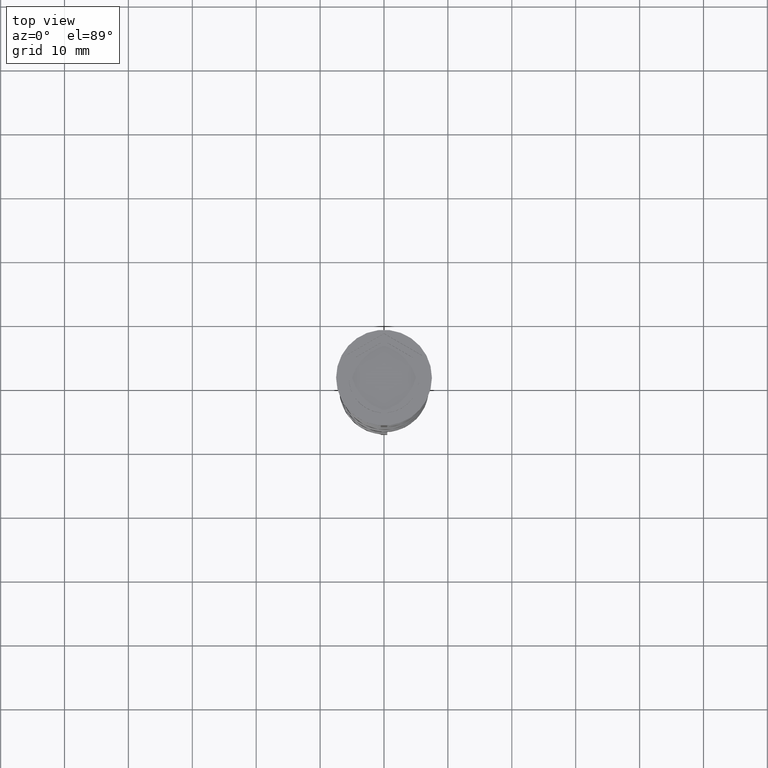
[diagram: clean part render]
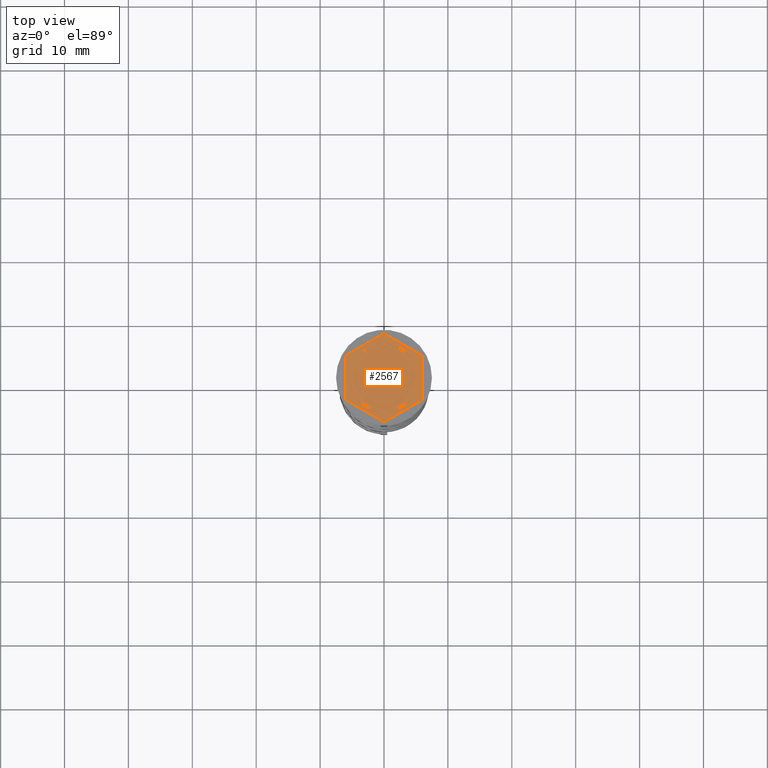
[diagram: same view with one face highlighted and labeled with its STEP entity id]
A machine part, top view. The second image highlights one B-rep face of the part: STEP entity #2567.
In plain terms, the highlighted planar face has unit normal (0, 0, 1).
Its self-contained STEP definition (entity closure, byte-faithful):
#22 = EDGE_CURVE ( 'NONE', #464, #2914, #2546, .T. ) ;
#40 = FACE_OUTER_BOUND ( 'NONE', #2817, .T. ) ;
#47 = EDGE_CURVE ( 'NONE', #459, #3182, #2130, .T. ) ;
#65 = LINE ( 'NONE', #112, #1292 ) ;
#76 = FACE_BOUND ( 'NONE', #3560, .T. ) ;
#84 = DIRECTION ( 'NONE',  ( 0.8660254037844388186, -0.4999999999999997224, 0.000000000000000000 ) ) ;
#112 = CARTESIAN_POINT ( 'NONE',  ( -5.000000000000000888, -2.886751345948129099, -1.000000000000000888 ) ) ;
#190 = CIRCLE ( 'NONE', #3507, 5.500000000000001776 ) ;
#193 = CIRCLE ( 'NONE', #312, 5.500000000000001776 ) ;
#204 = ORIENTED_EDGE ( 'NONE', *, *, #3028, .F. ) ;
#241 = DIRECTION ( 'NONE',  ( 0.8660254037844387076, -0.4999999999999998335, 0.000000000000000000 ) ) ;
#245 = CARTESIAN_POINT ( 'NONE',  ( 0.000000000000000000, 0.000000000000000000, -1.000000000000000000 ) ) ;
#257 = LINE ( 'NONE', #1035, #2216 ) ;
#282 = CARTESIAN_POINT ( 'NONE',  ( 0.000000000000000000, 0.000000000000000000, -1.000000000000000000 ) ) ;
#290 = CARTESIAN_POINT ( 'NONE',  ( 4.484313483298445036, -3.184483095183233026, -1.000000000000000888 ) ) ;
#312 = AXIS2_PLACEMENT_3D ( 'NONE', #2382, #943, #976 ) ;
#317 = ORIENTED_EDGE ( 'NONE', *, *, #2046, .F. ) ;
#334 = CARTESIAN_POINT ( 'NONE',  ( -5.500000000000001776, 0.000000000000000000, -1.000000000000000000 ) ) ;
#349 = PLANE ( 'NONE',  #1693 ) ;
#352 = EDGE_CURVE ( 'NONE', #2357, #1234, #3302, .T. ) ;
#363 = CARTESIAN_POINT ( 'NONE',  ( 4.484313483298442371, 3.184483095183238355, -1.000000000000000888 ) ) ;
#369 = CARTESIAN_POINT ( 'NONE',  ( -1.734723475976807094E-15, -5.773502691896258199, -1.000000000000000888 ) ) ;
#377 = EDGE_CURVE ( 'NONE', #3311, #2004, #1119, .T. ) ;
#380 = EDGE_LOOP ( 'NONE', ( #204, #317 ) ) ;
#392 = CARTESIAN_POINT ( 'NONE',  ( 5.999999999999998224, -3.464101615137753942, -1.000000000000000000 ) ) ;
#393 = EDGE_CURVE ( 'NONE', #1100, #3311, #2217, .T. ) ;
#412 = LINE ( 'NONE', #664, #3334 ) ;
#459 = VERTEX_POINT ( 'NONE', #1951 ) ;
#464 = VERTEX_POINT ( 'NONE', #1613 ) ;
#500 = CARTESIAN_POINT ( 'NONE',  ( -5.000000000000000888, 2.886751345948129099, -1.000000000000000888 ) ) ;
#559 = FACE_BOUND ( 'NONE', #1617, .T. ) ;
#577 = ORIENTED_EDGE ( 'NONE', *, *, #2814, .T. ) ;
#647 = ORIENTED_EDGE ( 'NONE', *, *, #377, .T. ) ;
#664 = CARTESIAN_POINT ( 'NONE',  ( -6.000000000000000000, -3.464101615137755719, -1.000000000000000000 ) ) ;
#675 = CARTESIAN_POINT ( 'NONE',  ( 0.000000000000000000, 0.000000000000000000, -1.000000000000000000 ) ) ;
#710 = ORIENTED_EDGE ( 'NONE', *, *, #1519, .F. ) ;
#832 = CARTESIAN_POINT ( 'NONE',  ( 6.000000000000000000, 3.464101615137753942, -1.000000000000000000 ) ) ;
#845 = EDGE_CURVE ( 'NONE', #1154, #2653, #3558, .T. ) ;
#874 = DIRECTION ( 'NONE',  ( -3.004629197474317076E-16, -1.000000000000000000, 0.000000000000000000 ) ) ;
#882 = CARTESIAN_POINT ( 'NONE',  ( 0.5156865167015526330, -5.475770942661155161, -1.000000000000000888 ) ) ;
#907 = VERTEX_POINT ( 'NONE', #3071 ) ;
#928 = CARTESIAN_POINT ( 'NONE',  ( -0.5156865167015569629, -5.475770942661155161, -1.000000000000000888 ) ) ;
#937 = VERTEX_POINT ( 'NONE', #882 ) ;
#943 = DIRECTION ( 'NONE',  ( 0.000000000000000000, 0.000000000000000000, 1.000000000000000000 ) ) ;
#964 = VERTEX_POINT ( 'NONE', #3369 ) ;
#976 = DIRECTION ( 'NONE',  ( 1.000000000000000000, 0.000000000000000000, 0.000000000000000000 ) ) ;
#1035 = CARTESIAN_POINT ( 'NONE',  ( 0.000000000000000000, 6.928203230275506996, -1.000000000000000000 ) ) ;
#1064 = VECTOR ( 'NONE', #2325, 1000.000000000000000 ) ;
#1077 = EDGE_CURVE ( 'NONE', #964, #3497, #1344, .T. ) ;
#1087 = DIRECTION ( 'NONE',  ( -0.8660254037844387076, 0.4999999999999998335, 0.000000000000000000 ) ) ;
#1100 = VERTEX_POINT ( 'NONE', #392 ) ;
#1101 = DIRECTION ( 'NONE',  ( 0.000000000000000000, -1.000000000000000000, 0.000000000000000000 ) ) ;
#1119 = LINE ( 'NONE', #832, #2605 ) ;
#1132 = CARTESIAN_POINT ( 'NONE',  ( 5.000000000000000888, 2.886751345948130876, -1.000000000000000888 ) ) ;
#1134 = DIRECTION ( 'NONE',  ( 1.000000000000000000, 0.000000000000000000, 0.000000000000000000 ) ) ;
#1154 = VERTEX_POINT ( 'NONE', #1209 ) ;
#1172 = DIRECTION ( 'NONE',  ( 0.000000000000000000, 0.000000000000000000, 1.000000000000000000 ) ) ;
#1194 = DIRECTION ( 'NONE',  ( -0.8660254037844385966, 0.5000000000000001110, 0.000000000000000000 ) ) ;
#1202 = LINE ( 'NONE', #369, #3330 ) ;
#1209 = CARTESIAN_POINT ( 'NONE',  ( -5.000000000000000888, 2.291287847477921247, -1.000000000000000888 ) ) ;
#1234 = VERTEX_POINT ( 'NONE', #2450 ) ;
#1245 = ORIENTED_EDGE ( 'NONE', *, *, #1264, .F. ) ;
#1257 = CARTESIAN_POINT ( 'NONE',  ( -4.280685092543093048E-16, -6.928203230275507885, -1.000000000000000000 ) ) ;
#1264 = EDGE_CURVE ( 'NONE', #907, #1154, #2988, .T. ) ;
#1292 = VECTOR ( 'NONE', #1194, 1000.000000000000000 ) ;
#1325 = CARTESIAN_POINT ( 'NONE',  ( 0.000000000000000000, 6.928203230275506996, -1.000000000000000000 ) ) ;
#1344 = CIRCLE ( 'NONE', #1401, 5.500000000000001776 ) ;
#1352 = DIRECTION ( 'NONE',  ( 0.000000000000000000, 0.000000000000000000, 1.000000000000000000 ) ) ;
#1386 = LINE ( 'NONE', #1132, #1460 ) ;
#1387 = DIRECTION ( 'NONE',  ( 0.000000000000000000, 0.000000000000000000, 1.000000000000000000 ) ) ;
#1401 = AXIS2_PLACEMENT_3D ( 'NONE', #675, #2637, #2071 ) ;
#1424 = ORIENTED_EDGE ( 'NONE', *, *, #22, .F. ) ;
#1460 = VECTOR ( 'NONE', #241, 1000.000000000000114 ) ;
#1475 = DIRECTION ( 'NONE',  ( -0.8660254037844387076, -0.4999999999999997224, 0.000000000000000000 ) ) ;
#1490 = DIRECTION ( 'NONE',  ( 0.000000000000000000, 0.000000000000000000, 1.000000000000000000 ) ) ;
#1515 = EDGE_LOOP ( 'NONE', ( #2227, #1780 ) ) ;
#1519 = EDGE_CURVE ( 'NONE', #937, #3373, #3088, .T. ) ;
#1552 = ORIENTED_EDGE ( 'NONE', *, *, #3207, .T. ) ;
#1581 = CARTESIAN_POINT ( 'NONE',  ( -6.000000000000000000, 3.464101615137752166, -1.000000000000000000 ) ) ;
#1613 = CARTESIAN_POINT ( 'NONE',  ( -4.484313483298445036, -3.184483095183233470, -1.000000000000000888 ) ) ;
#1614 = CARTESIAN_POINT ( 'NONE',  ( 4.999999999999999112, -2.886751345948130432, -1.000000000000000888 ) ) ;
#1617 = EDGE_LOOP ( 'NONE', ( #710, #2821 ) ) ;
#1653 = CARTESIAN_POINT ( 'NONE',  ( -6.000000000000000000, 3.464101615137752166, -1.000000000000000000 ) ) ;
#1676 = AXIS2_PLACEMENT_3D ( 'NONE', #282, #1387, #2213 ) ;
#1693 = AXIS2_PLACEMENT_3D ( 'NONE', #3112, #1172, #2253 ) ;
#1703 = EDGE_CURVE ( 'NONE', #3497, #964, #2237, .T. ) ;
#1746 = CARTESIAN_POINT ( 'NONE',  ( 0.5156865167015596274, 5.475770942661155161, -1.000000000000000888 ) ) ;
#1752 = DIRECTION ( 'NONE',  ( 0.8660254037844385966, 0.5000000000000000000, 0.000000000000000000 ) ) ;
#1780 = ORIENTED_EDGE ( 'NONE', *, *, #1703, .F. ) ;
#1826 = ORIENTED_EDGE ( 'NONE', *, *, #3192, .F. ) ;
#1858 = CARTESIAN_POINT ( 'NONE',  ( -4.484313483298445036, 3.184483095183233470, -1.000000000000000888 ) ) ;
#1915 = EDGE_LOOP ( 'NONE', ( #2034, #1245, #1826 ) ) ;
#1951 = CARTESIAN_POINT ( 'NONE',  ( -0.5156865167015569629, 5.475770942661155161, -1.000000000000000888 ) ) ;
#1998 = FACE_BOUND ( 'NONE', #1515, .T. ) ;
#2004 = VERTEX_POINT ( 'NONE', #1325 ) ;
#2034 = ORIENTED_EDGE ( 'NONE', *, *, #845, .F. ) ;
#2046 = EDGE_CURVE ( 'NONE', #2785, #2780, #1386, .T. ) ;
#2071 = DIRECTION ( 'NONE',  ( 1.000000000000000000, 0.000000000000000000, 0.000000000000000000 ) ) ;
#2085 = VECTOR ( 'NONE', #1752, 1000.000000000000227 ) ;
#2093 = EDGE_CURVE ( 'NONE', #3248, #1100, #3480, .T. ) ;
#2105 = CARTESIAN_POINT ( 'NONE',  ( 6.000000000000000000, 3.464101615137753942, -1.000000000000000000 ) ) ;
#2115 = EDGE_CURVE ( 'NONE', #3182, #459, #3195, .T. ) ;
#2130 = CIRCLE ( 'NONE', #3124, 5.500000000000001776 ) ;
#2139 = AXIS2_PLACEMENT_3D ( 'NONE', #2717, #2843, #2812 ) ;
#2169 = ORIENTED_EDGE ( 'NONE', *, *, #2879, .F. ) ;
#2213 = DIRECTION ( 'NONE',  ( 1.000000000000000000, 0.000000000000000000, 0.000000000000000000 ) ) ;
#2215 = ORIENTED_EDGE ( 'NONE', *, *, #2115, .F. ) ;
#2216 = VECTOR ( 'NONE', #2444, 1000.000000000000227 ) ;
#2217 = LINE ( 'NONE', #3561, #3554 ) ;
#2220 = FACE_BOUND ( 'NONE', #1915, .T. ) ;
#2222 = EDGE_CURVE ( 'NONE', #3373, #937, #1202, .T. ) ;
#2227 = ORIENTED_EDGE ( 'NONE', *, *, #1077, .F. ) ;
#2237 = LINE ( 'NONE', #1614, #3187 ) ;
#2253 = DIRECTION ( 'NONE',  ( 1.000000000000000000, 0.000000000000000000, -0.000000000000000000 ) ) ;
#2261 = VECTOR ( 'NONE', #1101, 1000.000000000000000 ) ;
#2325 = DIRECTION ( 'NONE',  ( 0.8660254037844385966, 0.5000000000000001110, -0.000000000000000000 ) ) ;
#2357 = VERTEX_POINT ( 'NONE', #1581 ) ;
#2382 = CARTESIAN_POINT ( 'NONE',  ( 0.000000000000000000, 0.000000000000000000, -1.000000000000000000 ) ) ;
#2390 = ORIENTED_EDGE ( 'NONE', *, *, #2093, .T. ) ;
#2444 = DIRECTION ( 'NONE',  ( -0.8660254037844385966, -0.4999999999999998890, 0.000000000000000000 ) ) ;
#2450 = CARTESIAN_POINT ( 'NONE',  ( -6.000000000000000000, -3.464101615137755719, -1.000000000000000000 ) ) ;
#2527 = FACE_BOUND ( 'NONE', #380, .T. ) ;
#2546 = CIRCLE ( 'NONE', #1676, 5.500000000000001776 ) ;
#2567 = ADVANCED_FACE ( 'NONE', ( #2527, #1998, #559, #76, #2220, #3345, #40 ), #349, .T. ) ;
#2583 = DIRECTION ( 'NONE',  ( 1.000000000000000000, 0.000000000000000000, 0.000000000000000000 ) ) ;
#2605 = VECTOR ( 'NONE', #1087, 1000.000000000000000 ) ;
#2637 = DIRECTION ( 'NONE',  ( 0.000000000000000000, 0.000000000000000000, 1.000000000000000000 ) ) ;
#2653 = VERTEX_POINT ( 'NONE', #334 ) ;
#2712 = CARTESIAN_POINT ( 'NONE',  ( -4.280685092543093048E-16, -6.928203230275507885, -1.000000000000000000 ) ) ;
#2717 = CARTESIAN_POINT ( 'NONE',  ( 0.000000000000000000, 0.000000000000000000, -1.000000000000000000 ) ) ;
#2720 = ORIENTED_EDGE ( 'NONE', *, *, #393, .T. ) ;
#2732 = DIRECTION ( 'NONE',  ( 0.000000000000000000, 0.000000000000000000, 1.000000000000000000 ) ) ;
#2755 = DIRECTION ( 'NONE',  ( 0.000000000000000000, 1.000000000000000000, 0.000000000000000000 ) ) ;
#2764 = DIRECTION ( 'NONE',  ( 2.503857664561932376E-16, 1.000000000000000000, 0.000000000000000000 ) ) ;
#2780 = VERTEX_POINT ( 'NONE', #363 ) ;
#2785 = VERTEX_POINT ( 'NONE', #1746 ) ;
#2812 = DIRECTION ( 'NONE',  ( 1.000000000000000000, 0.000000000000000000, 0.000000000000000000 ) ) ;
#2814 = EDGE_CURVE ( 'NONE', #1234, #3248, #412, .T. ) ;
#2817 = EDGE_LOOP ( 'NONE', ( #647, #1552, #3390, #577, #2390, #2720 ) ) ;
#2821 = ORIENTED_EDGE ( 'NONE', *, *, #2222, .F. ) ;
#2839 = VECTOR ( 'NONE', #2755, 1000.000000000000000 ) ;
#2843 = DIRECTION ( 'NONE',  ( 0.000000000000000000, 0.000000000000000000, 1.000000000000000000 ) ) ;
#2879 = EDGE_CURVE ( 'NONE', #2914, #464, #65, .T. ) ;
#2914 = VERTEX_POINT ( 'NONE', #928 ) ;
#2935 = ORIENTED_EDGE ( 'NONE', *, *, #47, .F. ) ;
#2988 = LINE ( 'NONE', #500, #2839 ) ;
#3001 = EDGE_LOOP ( 'NONE', ( #2935, #2215 ) ) ;
#3028 = EDGE_CURVE ( 'NONE', #2780, #2785, #193, .T. ) ;
#3071 = CARTESIAN_POINT ( 'NONE',  ( -5.000000000000000888, -2.291287847477921247, -1.000000000000000888 ) ) ;
#3088 = CIRCLE ( 'NONE', #3131, 5.500000000000001776 ) ;
#3112 = CARTESIAN_POINT ( 'NONE',  ( 0.000000000000000000, 0.000000000000000000, -1.000000000000000000 ) ) ;
#3124 = AXIS2_PLACEMENT_3D ( 'NONE', #245, #1352, #1134 ) ;
#3131 = AXIS2_PLACEMENT_3D ( 'NONE', #3237, #1490, #2583 ) ;
#3182 = VERTEX_POINT ( 'NONE', #1858 ) ;
#3187 = VECTOR ( 'NONE', #874, 1000.000000000000000 ) ;
#3192 = EDGE_CURVE ( 'NONE', #2653, #907, #190, .T. ) ;
#3195 = LINE ( 'NONE', #3449, #1064 ) ;
#3207 = EDGE_CURVE ( 'NONE', #2004, #2357, #257, .T. ) ;
#3237 = CARTESIAN_POINT ( 'NONE',  ( 0.000000000000000000, 0.000000000000000000, -1.000000000000000000 ) ) ;
#3241 = CARTESIAN_POINT ( 'NONE',  ( 0.000000000000000000, 0.000000000000000000, -1.000000000000000000 ) ) ;
#3248 = VERTEX_POINT ( 'NONE', #2712 ) ;
#3302 = LINE ( 'NONE', #1653, #2261 ) ;
#3311 = VERTEX_POINT ( 'NONE', #2105 ) ;
#3330 = VECTOR ( 'NONE', #1475, 1000.000000000000114 ) ;
#3334 = VECTOR ( 'NONE', #84, 1000.000000000000114 ) ;
#3345 = FACE_BOUND ( 'NONE', #3001, .T. ) ;
#3369 = CARTESIAN_POINT ( 'NONE',  ( 4.999999999999999112, -2.291287847477924355, -1.000000000000000888 ) ) ;
#3373 = VERTEX_POINT ( 'NONE', #290 ) ;
#3390 = ORIENTED_EDGE ( 'NONE', *, *, #352, .T. ) ;
#3449 = CARTESIAN_POINT ( 'NONE',  ( 4.336808689942017736E-16, 5.773502691896259087, -1.000000000000000888 ) ) ;
#3479 = CARTESIAN_POINT ( 'NONE',  ( 5.000000000000000888, 2.291287847477922135, -1.000000000000000888 ) ) ;
#3480 = LINE ( 'NONE', #1257, #2085 ) ;
#3497 = VERTEX_POINT ( 'NONE', #3479 ) ;
#3507 = AXIS2_PLACEMENT_3D ( 'NONE', #3241, #2732, #3528 ) ;
#3528 = DIRECTION ( 'NONE',  ( 1.000000000000000000, 0.000000000000000000, 0.000000000000000000 ) ) ;
#3554 = VECTOR ( 'NONE', #2764, 1000.000000000000000 ) ;
#3558 = CIRCLE ( 'NONE', #2139, 5.500000000000001776 ) ;
#3560 = EDGE_LOOP ( 'NONE', ( #1424, #2169 ) ) ;
#3561 = CARTESIAN_POINT ( 'NONE',  ( 5.999999999999998224, -3.464101615137753942, -1.000000000000000000 ) ) ;